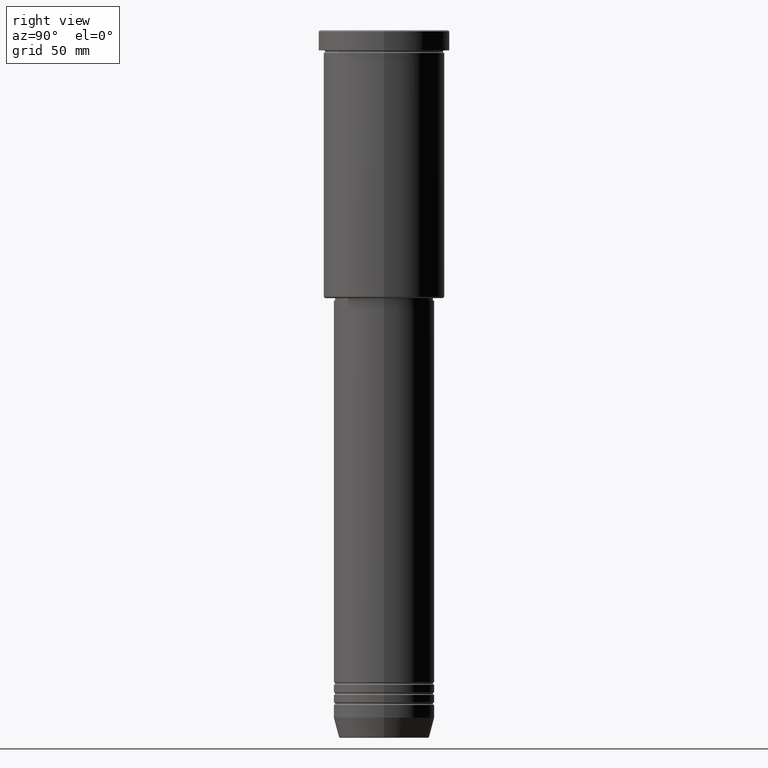
[diagram: clean part render]
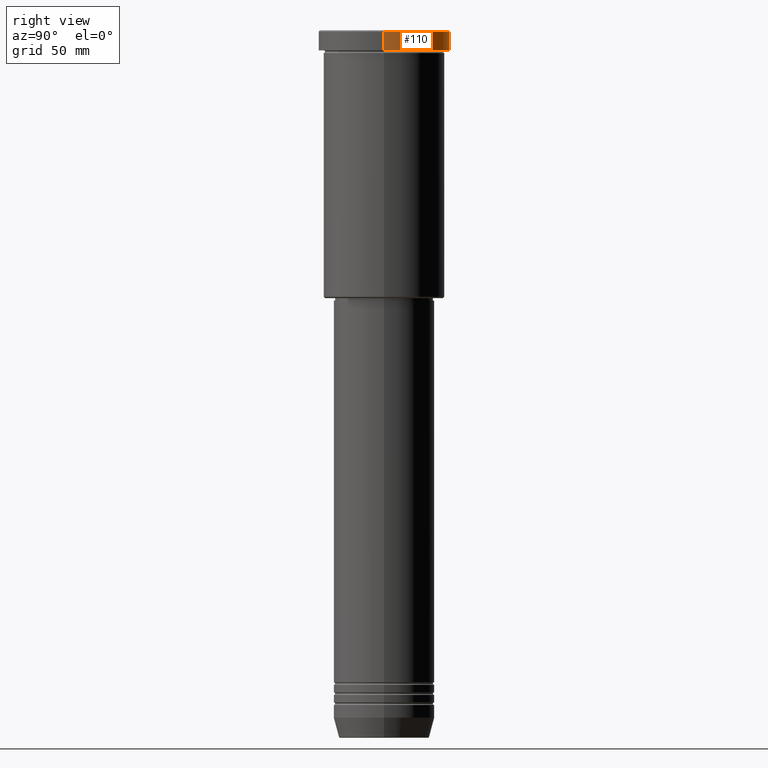
[diagram: same view with one face highlighted and labeled with its STEP entity id]
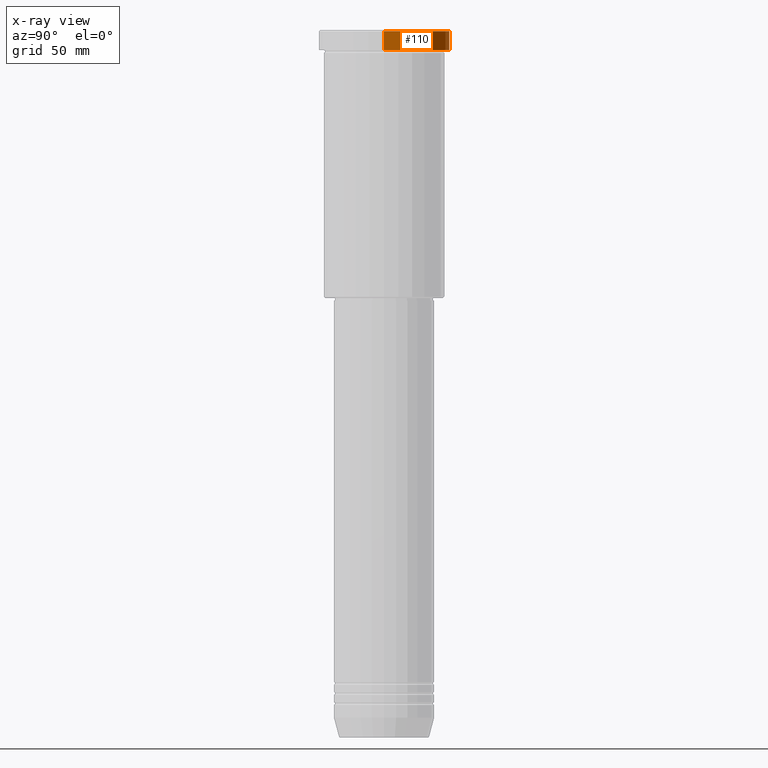
[diagram: x-ray of the same camera — body ghosted, the highlighted face saturated]
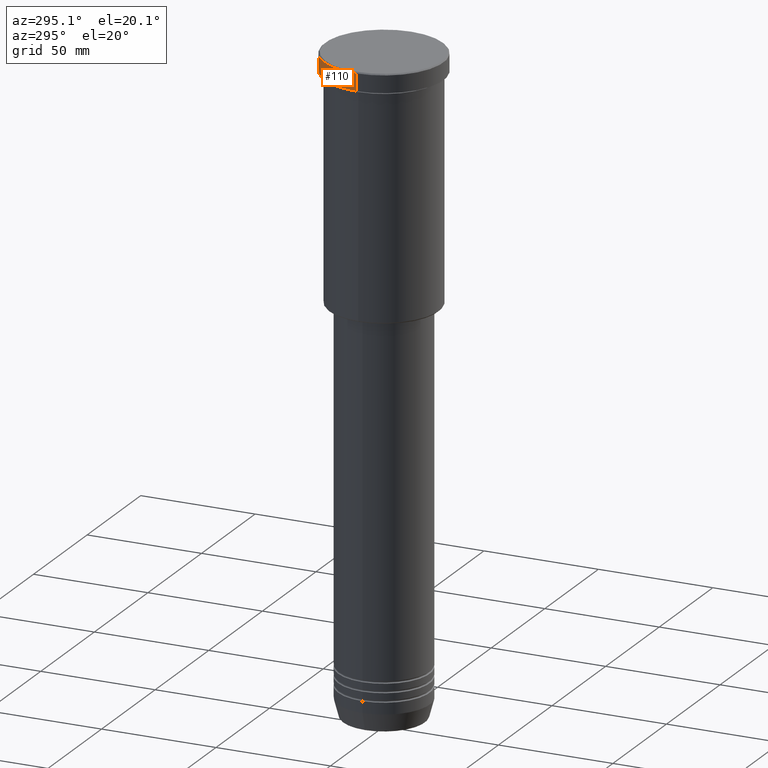
[diagram: same view with one face highlighted and labeled with its STEP entity id]
A machine part, right view. The second image highlights one B-rep face of the part: STEP entity #110.
The next image is the same camera in x-ray: the body ghosted, the highlighted face saturated — about 0% of this face is hidden behind the body in this view.
A second angle (auxiliary view) of the same face is appended — the face is thin or edge-on in the first view.
In plain terms, the highlighted cylindrical surface (partial cylindrical patch) has radius 26 mm, axis along (-0, -0, 1).
Its self-contained STEP definition (entity closure, byte-faithful):
#7 = VERTEX_POINT ( 'NONE', #216 ) ;
#32 = DIRECTION ( 'NONE',  ( 1.000000000000000000, 0.000000000000000000, 0.000000000000000000 ) ) ;
#68 = DIRECTION ( 'NONE',  ( -0.000000000000000000, -0.000000000000000000, 1.000000000000000000 ) ) ;
#104 = CARTESIAN_POINT ( 'NONE',  ( 26.00000000000000000, 0.000000000000000000, -0.5000000000000525135 ) ) ;
#110 = ADVANCED_FACE ( 'NONE', ( #1124 ), #917, .T. ) ;
#120 = LINE ( 'NONE', #933, #319 ) ;
#151 = AXIS2_PLACEMENT_3D ( 'NONE', #760, #952, #32 ) ;
#156 = LINE ( 'NONE', #522, #1096 ) ;
#216 = CARTESIAN_POINT ( 'NONE',  ( 26.00000000000000000, 0.000000000000000000, -7.999999999999992895 ) ) ;
#304 = EDGE_CURVE ( 'NONE', #7, #628, #120, .T. ) ;
#319 = VECTOR ( 'NONE', #484, 1000.000000000000000 ) ;
#327 = ORIENTED_EDGE ( 'NONE', *, *, #1135, .T. ) ;
#330 = CARTESIAN_POINT ( 'NONE',  ( 0.000000000000000000, 0.000000000000000000, -7.999999999999992895 ) ) ;
#362 = AXIS2_PLACEMENT_3D ( 'NONE', #734, #392, #824 ) ;
#392 = DIRECTION ( 'NONE',  ( 0.000000000000000000, 0.000000000000000000, -1.000000000000000000 ) ) ;
#484 = DIRECTION ( 'NONE',  ( -0.000000000000000000, -0.000000000000000000, 1.000000000000000000 ) ) ;
#508 = EDGE_CURVE ( 'NONE', #858, #976, #156, .T. ) ;
#522 = CARTESIAN_POINT ( 'NONE',  ( -26.00000000000000000, 3.184081677783118191E-15, 0.000000000000000000 ) ) ;
#558 = ORIENTED_EDGE ( 'NONE', *, *, #947, .T. ) ;
#619 = CARTESIAN_POINT ( 'NONE',  ( -26.00000000000000000, 3.184081677783118191E-15, -0.5000000000000525135 ) ) ;
#628 = VERTEX_POINT ( 'NONE', #104 ) ;
#680 = CARTESIAN_POINT ( 'NONE',  ( -26.00000000000000000, 3.184081677783118191E-15, -7.999999999999992895 ) ) ;
#721 = DIRECTION ( 'NONE',  ( 1.000000000000000000, 0.000000000000000000, 0.000000000000000000 ) ) ;
#734 = CARTESIAN_POINT ( 'NONE',  ( 0.000000000000000000, 0.000000000000000000, -0.5000000000000525135 ) ) ;
#760 = CARTESIAN_POINT ( 'NONE',  ( 0.000000000000000000, 0.000000000000000000, 0.000000000000000000 ) ) ;
#824 = DIRECTION ( 'NONE',  ( 1.000000000000000000, 0.000000000000000000, 0.000000000000000000 ) ) ;
#858 = VERTEX_POINT ( 'NONE', #680 ) ;
#876 = ORIENTED_EDGE ( 'NONE', *, *, #508, .T. ) ;
#891 = AXIS2_PLACEMENT_3D ( 'NONE', #330, #972, #721 ) ;
#917 = CYLINDRICAL_SURFACE ( 'NONE', #151, 26.00000000000000000 ) ;
#933 = CARTESIAN_POINT ( 'NONE',  ( 26.00000000000000000, 0.000000000000000000, 0.000000000000000000 ) ) ;
#947 = EDGE_CURVE ( 'NONE', #7, #858, #1038, .T. ) ;
#952 = DIRECTION ( 'NONE',  ( -0.000000000000000000, -0.000000000000000000, 1.000000000000000000 ) ) ;
#972 = DIRECTION ( 'NONE',  ( -0.000000000000000000, -0.000000000000000000, 1.000000000000000000 ) ) ;
#976 = VERTEX_POINT ( 'NONE', #619 ) ;
#984 = ORIENTED_EDGE ( 'NONE', *, *, #304, .F. ) ;
#1038 = CIRCLE ( 'NONE', #891, 26.00000000000000000 ) ;
#1039 = CIRCLE ( 'NONE', #362, 26.00000000000000000 ) ;
#1096 = VECTOR ( 'NONE', #68, 1000.000000000000000 ) ;
#1124 = FACE_OUTER_BOUND ( 'NONE', #1182, .T. ) ;
#1135 = EDGE_CURVE ( 'NONE', #976, #628, #1039, .T. ) ;
#1182 = EDGE_LOOP ( 'NONE', ( #558, #876, #327, #984 ) ) ;